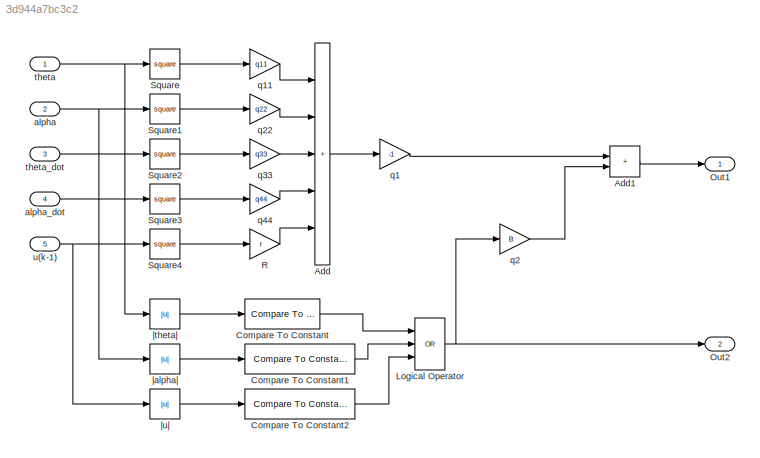
MODEL slx_3d944a7bc3c2
KIND model
CONFIG AbsTol = auto
CONFIG EnableMultiTasking = off
CONFIG FixedStep = auto
CONFIG MaxStep = auto
CONFIG MinStep = auto
CONFIG RelTol = 1e-3
CONFIG SampleTimeConstraint = Unconstrained
CONFIG SolverName = VariableStepAuto
CONFIG StartTime = 0.0
CONFIG StopTime = 10.0
BLOCK [Sum] Add
  IconShape = rectangular
  Inputs = +++++
BLOCK [Sum] Add1
  IconShape = rectangular
BLOCK [Reference] Compare To Constant  REF=simulink/Logic and Bit
Operations/Compare
To Constant
  SourceBlock = simulink/Logic and Bit\nOperations/Compare\nTo Constant
  SourceType = Compare To Constant
BLOCK [Reference] Compare To Constant1  REF=simulink/Logic and Bit
Operations/Compare
To Constant
  SourceBlock = simulink/Logic and Bit\nOperations/Compare\nTo Constant
  SourceType = Compare To Constant
BLOCK [Reference] Compare To Constant2  REF=simulink/Logic and Bit
Operations/Compare
To Constant
  SourceBlock = simulink/Logic and Bit\nOperations/Compare\nTo Constant
  SourceType = Compare To Constant
BLOCK [Logic] Logical Operator
  AllPortsSameDT = off
  Inputs = 3
  Operator = OR
  OutDataTypeStr = boolean
BLOCK [Outport] Out1
BLOCK [Outport] Out2
  Port = 2
BLOCK [Gain] R
  Gain = r
BLOCK [Math] Square
  Operator = square
BLOCK [Math] Square1
  Operator = square
BLOCK [Math] Square2
  Operator = square
BLOCK [Math] Square3
  Operator = square
BLOCK [Math] Square4
  Operator = square
BLOCK [Inport] alpha
  Port = 2
BLOCK [Inport] alpha_dot
  Port = 4
BLOCK [Gain] q1
  Gain = -1
BLOCK [Gain] q11
  Gain = q11
BLOCK [Gain] q2
  Gain = B
BLOCK [Gain] q22
  Gain = q22
BLOCK [Gain] q33
  Gain = q33
BLOCK [Gain] q44
  Gain = q44
BLOCK [Inport] theta
BLOCK [Inport] theta_dot
  Port = 3
BLOCK [Inport] u(k-1)
  Port = 5
BLOCK [Abs] |alpha|
  SaturateOnIntegerOverflow = off
BLOCK [Abs] |theta|
  SaturateOnIntegerOverflow = off
BLOCK [Abs] |u|
  SaturateOnIntegerOverflow = off
LINE Add1:1 -> Out1:1
LINE Add:1 -> q1:1
LINE Compare To Constant1:1 -> Logical Operator:2
LINE Compare To Constant2:1 -> Logical Operator:3
LINE Compare To Constant:1 -> Logical Operator:1
NET Logical Operator:1 -> Out2:1, q2:1
LINE R:1 -> Add:5
LINE Square1:1 -> q22:1
LINE Square2:1 -> q33:1
LINE Square3:1 -> q44:1
LINE Square4:1 -> R:1
LINE Square:1 -> q11:1
NET alpha:1 -> Square1:1, |alpha|:1
LINE alpha_dot:1 -> Square3:1
LINE q11:1 -> Add:1
LINE q1:1 -> Add1:1
LINE q22:1 -> Add:2
LINE q2:1 -> Add1:2
LINE q33:1 -> Add:3
LINE q44:1 -> Add:4
NET theta:1 -> Square:1, |theta|:1
LINE theta_dot:1 -> Square2:1
NET u(k-1):1 -> Square4:1, |u|:1
LINE |alpha|:1 -> Compare To Constant1:1
LINE |theta|:1 -> Compare To Constant:1
LINE |u|:1 -> Compare To Constant2:1
note: NET lines group one-source signal fan-out (src -> all destinations, sorted); 1:1 wires keep LINE
